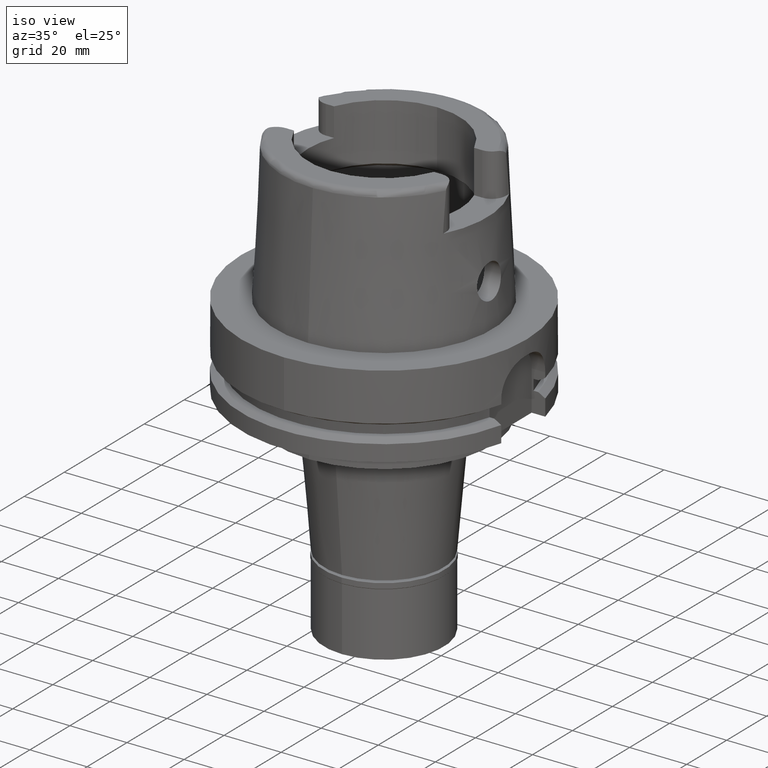
[diagram: clean part render]
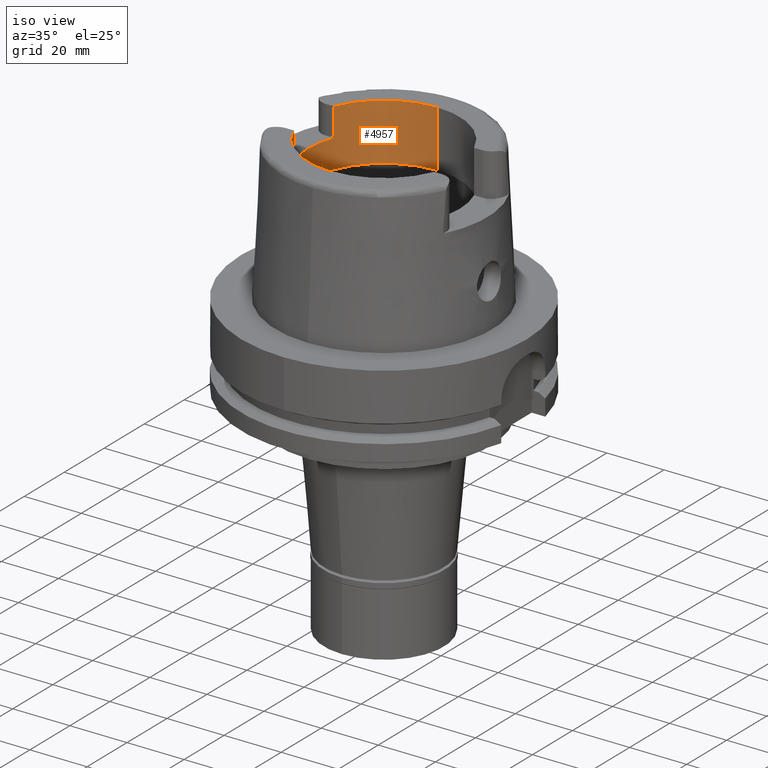
[diagram: same view with one face highlighted and labeled with its STEP entity id]
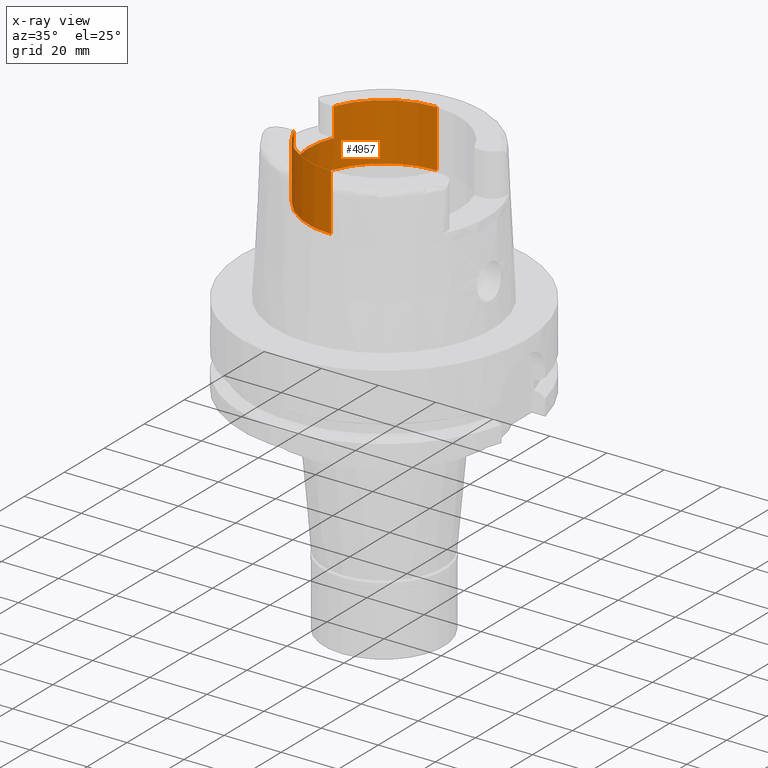
[diagram: x-ray of the same camera — body ghosted, the highlighted face saturated]
A machine part, iso view. The second image highlights one B-rep face of the part: STEP entity #4957.
The next image is the same camera in x-ray: the body ghosted, the highlighted face saturated — about 0% of this face is hidden behind the body in this view.
In plain terms, the highlighted cylindrical surface (partial cylindrical patch) has radius 26.5 mm, axis along (0, 0, 1).
Its self-contained STEP definition (entity closure, byte-faithful):
#49 = CIRCLE ( 'NONE', #5463, 26.50000000000000711 ) ;
#81 = AXIS2_PLACEMENT_3D ( 'NONE', #4092, #2337, #4959 ) ;
#110 = ORIENTED_EDGE ( 'NONE', *, *, #3103, .T. ) ;
#129 = VERTEX_POINT ( 'NONE', #4233 ) ;
#532 = VERTEX_POINT ( 'NONE', #4251 ) ;
#548 = VERTEX_POINT ( 'NONE', #5450 ) ;
#570 = CARTESIAN_POINT ( 'NONE',  ( -24.53670515777999839, -10.00999999999999979, 40.00000000000000000 ) ) ;
#606 = VECTOR ( 'NONE', #4319, 1000.000000000000000 ) ;
#619 = CARTESIAN_POINT ( 'NONE',  ( 0.0000000000000000000, 26.50000000000000000, 30.00337567297000163 ) ) ;
#624 = ORIENTED_EDGE ( 'NONE', *, *, #1504, .T. ) ;
#642 = ORIENTED_EDGE ( 'NONE', *, *, #4203, .T. ) ;
#1019 = VECTOR ( 'NONE', #5135, 1000.000000000000000 ) ;
#1078 = CARTESIAN_POINT ( 'NONE',  ( -24.53670515777999839, 10.00999999999999979, 40.00000000000000000 ) ) ;
#1171 = LINE ( 'NONE', #1286, #606 ) ;
#1286 = CARTESIAN_POINT ( 'NONE',  ( -24.53670515777999839, -10.00999999999999979, 50.00000000000000000 ) ) ;
#1337 = CIRCLE ( 'NONE', #81, 26.50000000000000000 ) ;
#1370 = DIRECTION ( 'NONE',  ( 0.0000000000000000000, 0.0000000000000000000, 1.000000000000000000 ) ) ;
#1422 = CARTESIAN_POINT ( 'NONE',  ( 0.0000000000000000000, 0.0000000000000000000, -104.8750000000000000 ) ) ;
#1446 = DIRECTION ( 'NONE',  ( 0.0000000000000000000, 1.000000000000000000, 0.0000000000000000000 ) ) ;
#1483 = EDGE_CURVE ( 'NONE', #2416, #532, #3359, .T. ) ;
#1504 = EDGE_CURVE ( 'NONE', #2416, #4882, #1619, .T. ) ;
#1619 = CIRCLE ( 'NONE', #4509, 26.50000000000000711 ) ;
#1841 = AXIS2_PLACEMENT_3D ( 'NONE', #2181, #3784, #5171 ) ;
#1979 = ORIENTED_EDGE ( 'NONE', *, *, #2064, .T. ) ;
#1991 = ORIENTED_EDGE ( 'NONE', *, *, #4723, .F. ) ;
#2005 = DIRECTION ( 'NONE',  ( -0.9259134021805098813, 0.3777358490566039562, 0.0000000000000000000 ) ) ;
#2064 = EDGE_CURVE ( 'NONE', #548, #3147, #4603, .T. ) ;
#2112 = CARTESIAN_POINT ( 'NONE',  ( 0.0000000000000000000, 26.50000000000000000, 50.00000000000000000 ) ) ;
#2145 = CARTESIAN_POINT ( 'NONE',  ( 0.0000000000000000000, -26.50000000000000000, 30.00337567297000163 ) ) ;
#2181 = CARTESIAN_POINT ( 'NONE',  ( 0.0000000000000000000, 0.0000000000000000000, 50.00000000000000000 ) ) ;
#2256 = EDGE_CURVE ( 'NONE', #3427, #4882, #1171, .T. ) ;
#2303 = VECTOR ( 'NONE', #5411, 1000.000000000000000 ) ;
#2337 = DIRECTION ( 'NONE',  ( 0.0000000000000000000, 0.0000000000000000000, -1.000000000000000000 ) ) ;
#2416 = VERTEX_POINT ( 'NONE', #3308 ) ;
#2486 = DIRECTION ( 'NONE',  ( 0.0000000000000000000, 0.0000000000000000000, 1.000000000000000000 ) ) ;
#2629 = DIRECTION ( 'NONE',  ( -0.9259134021805098813, -0.3777358490566039562, 0.0000000000000000000 ) ) ;
#2689 = DIRECTION ( 'NONE',  ( 0.0000000000000000000, 0.0000000000000000000, 1.000000000000000000 ) ) ;
#2940 = LINE ( 'NONE', #2145, #1019 ) ;
#3103 = EDGE_CURVE ( 'NONE', #129, #548, #1337, .T. ) ;
#3143 = CARTESIAN_POINT ( 'NONE',  ( 0.0000000000000000000, 0.0000000000000000000, 50.00000000000000000 ) ) ;
#3147 = VERTEX_POINT ( 'NONE', #2112 ) ;
#3308 = CARTESIAN_POINT ( 'NONE',  ( -24.53670515777999839, 10.00999999999999979, 40.00000000000000000 ) ) ;
#3359 = LINE ( 'NONE', #1078, #3969 ) ;
#3427 = VERTEX_POINT ( 'NONE', #4999 ) ;
#3784 = DIRECTION ( 'NONE',  ( 0.0000000000000000000, 0.0000000000000000000, 1.000000000000000000 ) ) ;
#3929 = CARTESIAN_POINT ( 'NONE',  ( 0.0000000000000000000, -26.50000000000000000, 50.00000000000000000 ) ) ;
#3969 = VECTOR ( 'NONE', #2486, 1000.000000000000000 ) ;
#4063 = ORIENTED_EDGE ( 'NONE', *, *, #4108, .T. ) ;
#4092 = CARTESIAN_POINT ( 'NONE',  ( 0.0000000000000000000, 0.0000000000000000000, 30.00337567297000163 ) ) ;
#4108 = EDGE_CURVE ( 'NONE', #3147, #532, #4919, .T. ) ;
#4151 = CARTESIAN_POINT ( 'NONE',  ( 0.0000000000000000000, 0.0000000000000000000, 40.00000000000000000 ) ) ;
#4203 = EDGE_CURVE ( 'NONE', #3427, #4394, #49, .T. ) ;
#4233 = CARTESIAN_POINT ( 'NONE',  ( 0.0000000000000000000, -26.50000000000000000, 30.00337567297000163 ) ) ;
#4251 = CARTESIAN_POINT ( 'NONE',  ( -24.53670515777999839, 10.00999999999999979, 50.00000000000000000 ) ) ;
#4286 = ORIENTED_EDGE ( 'NONE', *, *, #2256, .F. ) ;
#4319 = DIRECTION ( 'NONE',  ( 0.0000000000000000000, 0.0000000000000000000, -1.000000000000000000 ) ) ;
#4387 = CYLINDRICAL_SURFACE ( 'NONE', #4534, 26.50000000000000000 ) ;
#4394 = VERTEX_POINT ( 'NONE', #3929 ) ;
#4509 = AXIS2_PLACEMENT_3D ( 'NONE', #4151, #5445, #2005 ) ;
#4534 = AXIS2_PLACEMENT_3D ( 'NONE', #1422, #1370, #1446 ) ;
#4603 = LINE ( 'NONE', #619, #2303 ) ;
#4723 = EDGE_CURVE ( 'NONE', #129, #4394, #2940, .T. ) ;
#4882 = VERTEX_POINT ( 'NONE', #570 ) ;
#4919 = CIRCLE ( 'NONE', #1841, 26.50000000000000000 ) ;
#4938 = EDGE_LOOP ( 'NONE', ( #4286, #642, #1991, #110, #1979, #4063, #5115, #624 ) ) ;
#4957 = ADVANCED_FACE ( 'NONE', ( #5335 ), #4387, .F. ) ;
#4959 = DIRECTION ( 'NONE',  ( 0.0000000000000000000, -1.000000000000000000, 0.0000000000000000000 ) ) ;
#4999 = CARTESIAN_POINT ( 'NONE',  ( -24.53670515777999839, -10.00999999999999979, 50.00000000000000000 ) ) ;
#5115 = ORIENTED_EDGE ( 'NONE', *, *, #1483, .F. ) ;
#5135 = DIRECTION ( 'NONE',  ( 0.0000000000000000000, 4.406108640804999471E-14, 1.000000000000000000 ) ) ;
#5171 = DIRECTION ( 'NONE',  ( 0.0000000000000000000, 1.000000000000000000, 0.0000000000000000000 ) ) ;
#5335 = FACE_OUTER_BOUND ( 'NONE', #4938, .T. ) ;
#5411 = DIRECTION ( 'NONE',  ( 0.0000000000000000000, -4.406108640804999471E-14, 1.000000000000000000 ) ) ;
#5445 = DIRECTION ( 'NONE',  ( 0.0000000000000000000, 0.0000000000000000000, 1.000000000000000000 ) ) ;
#5450 = CARTESIAN_POINT ( 'NONE',  ( 0.0000000000000000000, 26.50000000000000000, 30.00337567297000163 ) ) ;
#5463 = AXIS2_PLACEMENT_3D ( 'NONE', #3143, #2689, #2629 ) ;